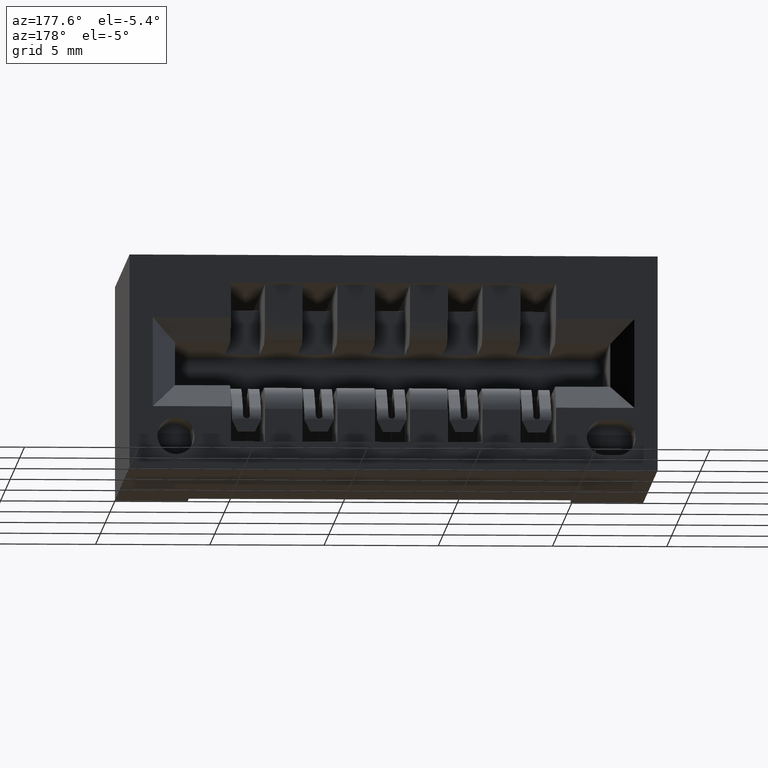
[diagram: clean part render]
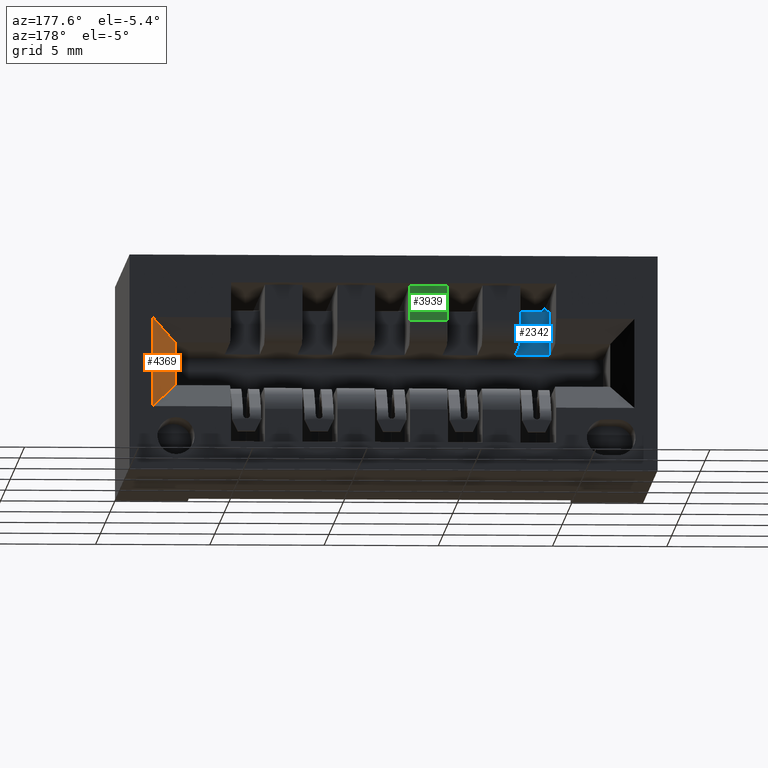
[diagram: same view with three faces highlighted in distinct colors, each labeled with its STEP entity id]
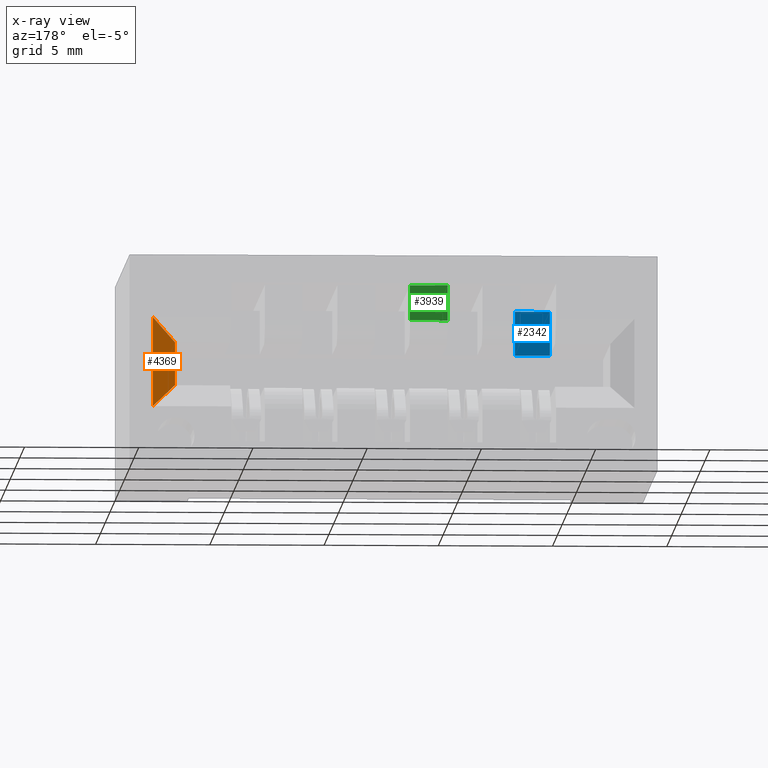
[diagram: x-ray of the same camera — body ghosted, the three highlighted faces saturated]
A machine part, auxiliary view with three faces highlighted in distinct colors.
The next image is the same camera in x-ray (body ghosted, the three faces saturated) — at least one of them is partly hidden behind the body in this view.
Their STEP definitions:

[orange] entity #4369 — the highlighted planar face has unit normal (0.7071, -0.7071, 0).
#312 = CARTESIAN_POINT ( 'NONE',  ( 1.092500000000000249, 0.5600000000000002753, -0.2220000000000000862 ) ) ;
#476 = VECTOR ( 'NONE', #7014, 39.37007874015748143 ) ;
#530 = FACE_OUTER_BOUND ( 'NONE', #1258, .T. ) ;
#746 = CARTESIAN_POINT ( 'NONE',  ( 1.132500000000000062, 0.5999999999999999778, -0.3700000000000001621 ) ) ;
#1258 = EDGE_LOOP ( 'NONE', ( #3865, #6152, #7261, #2627 ) ) ;
#1424 = VECTOR ( 'NONE', #6277, 39.37007874015748143 ) ;
#1466 = DIRECTION ( 'NONE',  ( -0.5773502691896269523, -0.5773502691896230665, 0.5773502691896269523 ) ) ;
#1475 = VERTEX_POINT ( 'NONE', #4549 ) ;
#2227 = VERTEX_POINT ( 'NONE', #3336 ) ;
#2446 = CARTESIAN_POINT ( 'NONE',  ( 1.092500000000000249, 0.5600000000000002753, -0.2220000000000000862 ) ) ;
#2627 = ORIENTED_EDGE ( 'NONE', *, *, #6189, .F. ) ;
#3020 = DIRECTION ( 'NONE',  ( 0.7071067811865499042, 0.7071067811865451302, 0.0000000000000000000 ) ) ;
#3038 = EDGE_CURVE ( 'NONE', #4556, #4041, #3054, .T. ) ;
#3054 = LINE ( 'NONE', #2446, #1424 ) ;
#3336 = CARTESIAN_POINT ( 'NONE',  ( 1.132500000000000062, 0.5999999999999999778, -0.1080000000000000820 ) ) ;
#3390 = AXIS2_PLACEMENT_3D ( 'NONE', #5439, #4819, #3020 ) ;
#3485 = DIRECTION ( 'NONE',  ( -0.5773502691896269523, -0.5773502691896230665, -0.5773502691896269523 ) ) ;
#3865 = ORIENTED_EDGE ( 'NONE', *, *, #6196, .T. ) ;
#4041 = VERTEX_POINT ( 'NONE', #4794 ) ;
#4198 = VECTOR ( 'NONE', #1466, 39.37007874015748854 ) ;
#4369 = ADVANCED_FACE ( 'NONE', ( #530 ), #6088, .F. ) ;
#4549 = CARTESIAN_POINT ( 'NONE',  ( 1.132500000000000062, 0.5999999999999999778, -0.2620000000000000662 ) ) ;
#4556 = VERTEX_POINT ( 'NONE', #5776 ) ;
#4794 = CARTESIAN_POINT ( 'NONE',  ( 1.092500000000000249, 0.5600000000000002753, -0.2220000000000000862 ) ) ;
#4819 = DIRECTION ( 'NONE',  ( 0.7071067811865451302, -0.7071067811865499042, 0.0000000000000000000 ) ) ;
#4844 = EDGE_CURVE ( 'NONE', #2227, #4556, #5887, .T. ) ;
#5439 = CARTESIAN_POINT ( 'NONE',  ( 1.092500000000000249, 0.5600000000000002753, -0.2220000000000000862 ) ) ;
#5776 = CARTESIAN_POINT ( 'NONE',  ( 1.092500000000000249, 0.5600000000000002753, -0.1480000000000000759 ) ) ;
#5887 = LINE ( 'NONE', #7652, #7740 ) ;
#6088 = PLANE ( 'NONE',  #3390 ) ;
#6152 = ORIENTED_EDGE ( 'NONE', *, *, #3038, .F. ) ;
#6189 = EDGE_CURVE ( 'NONE', #1475, #2227, #7624, .T. ) ;
#6196 = EDGE_CURVE ( 'NONE', #1475, #4041, #7658, .T. ) ;
#6277 = DIRECTION ( 'NONE',  ( 0.0000000000000000000, 0.0000000000000000000, -1.000000000000000000 ) ) ;
#7014 = DIRECTION ( 'NONE',  ( 0.0000000000000000000, 0.0000000000000000000, 1.000000000000000000 ) ) ;
#7261 = ORIENTED_EDGE ( 'NONE', *, *, #4844, .F. ) ;
#7624 = LINE ( 'NONE', #746, #476 ) ;
#7652 = CARTESIAN_POINT ( 'NONE',  ( 0.8424999999999990274, 0.3100000000000007749, -0.3980000000000011862 ) ) ;
#7658 = LINE ( 'NONE', #312, #4198 ) ;
#7740 = VECTOR ( 'NONE', #3485, 39.37007874015748854 ) ;

[blue] entity #2342 — the highlighted planar face has unit normal (0, -1, 0).
#51 = FACE_OUTER_BOUND ( 'NONE', #1022, .T. ) ;
#175 = VECTOR ( 'NONE', #1903, 39.37007874015748143 ) ;
#821 = CARTESIAN_POINT ( 'NONE',  ( 0.4974999999999999978, 0.3450000000000001399, -0.1480000000000000204 ) ) ;
#857 = DIRECTION ( 'NONE',  ( 1.000000000000000000, -0.0000000000000000000, -0.0000000000000000000 ) ) ;
#1022 = EDGE_LOOP ( 'NONE', ( #4516, #6512, #7454, #3769 ) ) ;
#1128 = CARTESIAN_POINT ( 'NONE',  ( 0.4375000000000000555, 0.3450000000000003064, -0.07249999999999998113 ) ) ;
#1233 = DIRECTION ( 'NONE',  ( 0.0000000000000000000, -1.000000000000000000, 1.809170856731298844E-15 ) ) ;
#1348 = LINE ( 'NONE', #7413, #175 ) ;
#1639 = CARTESIAN_POINT ( 'NONE',  ( 0.4375000000000000555, 0.3450000000000003064, -0.07249999999999998113 ) ) ;
#1726 = CARTESIAN_POINT ( 'NONE',  ( 0.4974999999999999978, 0.3450000000000003064, -0.07249999999999998113 ) ) ;
#1778 = DIRECTION ( 'NONE',  ( -0.0000000000000000000, -1.809170856731298844E-15, -1.000000000000000000 ) ) ;
#1903 = DIRECTION ( 'NONE',  ( -0.0000000000000000000, -1.809170856731298844E-15, -1.000000000000000000 ) ) ;
#2236 = CARTESIAN_POINT ( 'NONE',  ( 0.4375000000000000555, 0.3450000000000001399, -0.1480000000000000204 ) ) ;
#2342 = ADVANCED_FACE ( 'NONE', ( #51 ), #4260, .F. ) ;
#2364 = DIRECTION ( 'NONE',  ( 0.0000000000000000000, -1.809170856731298844E-15, -1.000000000000000000 ) ) ;
#2493 = CARTESIAN_POINT ( 'NONE',  ( 0.4375000000000000555, 0.3450000000000001399, -0.1480000000000000204 ) ) ;
#2850 = VECTOR ( 'NONE', #857, 39.37007874015748143 ) ;
#3003 = LINE ( 'NONE', #4801, #5196 ) ;
#3769 = ORIENTED_EDGE ( 'NONE', *, *, #4205, .T. ) ;
#4138 = AXIS2_PLACEMENT_3D ( 'NONE', #2493, #1233, #2364 ) ;
#4205 = EDGE_CURVE ( 'NONE', #4792, #6280, #6638, .T. ) ;
#4260 = PLANE ( 'NONE',  #4138 ) ;
#4516 = ORIENTED_EDGE ( 'NONE', *, *, #5468, .T. ) ;
#4748 = VERTEX_POINT ( 'NONE', #821 ) ;
#4792 = VERTEX_POINT ( 'NONE', #1639 ) ;
#4801 = CARTESIAN_POINT ( 'NONE',  ( 0.4974999999999999978, 0.3450000000000001399, -0.1480000000000000204 ) ) ;
#4999 = VERTEX_POINT ( 'NONE', #6666 ) ;
#5145 = EDGE_CURVE ( 'NONE', #4999, #4748, #7751, .T. ) ;
#5196 = VECTOR ( 'NONE', #1778, 39.37007874015748143 ) ;
#5368 = VECTOR ( 'NONE', #7708, 39.37007874015748143 ) ;
#5468 = EDGE_CURVE ( 'NONE', #6280, #4748, #3003, .T. ) ;
#5553 = EDGE_CURVE ( 'NONE', #4792, #4999, #1348, .T. ) ;
#6280 = VERTEX_POINT ( 'NONE', #1726 ) ;
#6512 = ORIENTED_EDGE ( 'NONE', *, *, #5145, .F. ) ;
#6638 = LINE ( 'NONE', #1128, #2850 ) ;
#6666 = CARTESIAN_POINT ( 'NONE',  ( 0.4375000000000000555, 0.3450000000000001399, -0.1480000000000000204 ) ) ;
#7413 = CARTESIAN_POINT ( 'NONE',  ( 0.4375000000000000555, 0.3450000000000001399, -0.1480000000000000204 ) ) ;
#7454 = ORIENTED_EDGE ( 'NONE', *, *, #5553, .F. ) ;
#7708 = DIRECTION ( 'NONE',  ( 1.000000000000000000, -0.0000000000000000000, -0.0000000000000000000 ) ) ;
#7751 = LINE ( 'NONE', #2236, #5368 ) ;

[green] entity #3939 — the highlighted planar face has unit normal (0, -1, -0).
#29 = VECTOR ( 'NONE', #4793, 39.37007874015748143 ) ;
#149 = AXIS2_PLACEMENT_3D ( 'NONE', #3682, #1695, #4238 ) ;
#593 = CARTESIAN_POINT ( 'NONE',  ( 0.6875000000000000000, 0.5580000000000000515, -0.1079999999999997629 ) ) ;
#610 = PLANE ( 'NONE',  #149 ) ;
#886 = VECTOR ( 'NONE', #2321, 39.37007874015748143 ) ;
#1224 = LINE ( 'NONE', #3091, #886 ) ;
#1244 = DIRECTION ( 'NONE',  ( -0.0000000000000000000, -1.128862807299291159E-15, 1.000000000000000000 ) ) ;
#1695 = DIRECTION ( 'NONE',  ( 0.0000000000000000000, -1.000000000000000000, -1.128862807299291159E-15 ) ) ;
#2186 = ORIENTED_EDGE ( 'NONE', *, *, #6744, .F. ) ;
#2321 = DIRECTION ( 'NONE',  ( -0.0000000000000000000, -1.128862807299291159E-15, 1.000000000000000000 ) ) ;
#2345 = FACE_OUTER_BOUND ( 'NONE', #3796, .T. ) ;
#3091 = CARTESIAN_POINT ( 'NONE',  ( 0.6224999999999999423, 0.5579999999999999405, -0.04750000000000023648 ) ) ;
#3116 = LINE ( 'NONE', #6047, #4201 ) ;
#3682 = CARTESIAN_POINT ( 'NONE',  ( 0.6875000000000000000, 0.5579999999999999405, -0.04750000000000023648 ) ) ;
#3690 = VERTEX_POINT ( 'NONE', #593 ) ;
#3795 = EDGE_CURVE ( 'NONE', #3690, #6301, #4718, .T. ) ;
#3796 = EDGE_LOOP ( 'NONE', ( #4979, #5942, #2186, #5773 ) ) ;
#3939 = ADVANCED_FACE ( 'NONE', ( #2345 ), #610, .F. ) ;
#4172 = EDGE_CURVE ( 'NONE', #5428, #7712, #5482, .T. ) ;
#4201 = VECTOR ( 'NONE', #1244, 39.37007874015748143 ) ;
#4238 = DIRECTION ( 'NONE',  ( 0.0000000000000000000, 1.128862807299291159E-15, -1.000000000000000000 ) ) ;
#4718 = LINE ( 'NONE', #7549, #5287 ) ;
#4752 = CARTESIAN_POINT ( 'NONE',  ( 0.6875000000000000000, 0.5579999999999999405, -0.04750000000000023648 ) ) ;
#4793 = DIRECTION ( 'NONE',  ( -1.000000000000000000, -0.0000000000000000000, -0.0000000000000000000 ) ) ;
#4875 = CARTESIAN_POINT ( 'NONE',  ( 0.6875000000000000000, 0.5579999999999999405, -0.04750000000000023648 ) ) ;
#4979 = ORIENTED_EDGE ( 'NONE', *, *, #7869, .T. ) ;
#5287 = VECTOR ( 'NONE', #7593, 39.37007874015748143 ) ;
#5428 = VERTEX_POINT ( 'NONE', #4875 ) ;
#5482 = LINE ( 'NONE', #4752, #29 ) ;
#5773 = ORIENTED_EDGE ( 'NONE', *, *, #3795, .T. ) ;
#5942 = ORIENTED_EDGE ( 'NONE', *, *, #4172, .F. ) ;
#6047 = CARTESIAN_POINT ( 'NONE',  ( 0.6875000000000000000, 0.5579999999999999405, -0.04750000000000023648 ) ) ;
#6301 = VERTEX_POINT ( 'NONE', #6680 ) ;
#6680 = CARTESIAN_POINT ( 'NONE',  ( 0.6224999999999999423, 0.5580000000000000515, -0.1079999999999997629 ) ) ;
#6744 = EDGE_CURVE ( 'NONE', #3690, #5428, #3116, .T. ) ;
#7549 = CARTESIAN_POINT ( 'NONE',  ( 0.6875000000000000000, 0.5580000000000000515, -0.1079999999999997629 ) ) ;
#7593 = DIRECTION ( 'NONE',  ( -1.000000000000000000, -0.0000000000000000000, -0.0000000000000000000 ) ) ;
#7661 = CARTESIAN_POINT ( 'NONE',  ( 0.6224999999999999423, 0.5579999999999999405, -0.04750000000000023648 ) ) ;
#7712 = VERTEX_POINT ( 'NONE', #7661 ) ;
#7869 = EDGE_CURVE ( 'NONE', #6301, #7712, #1224, .T. ) ;